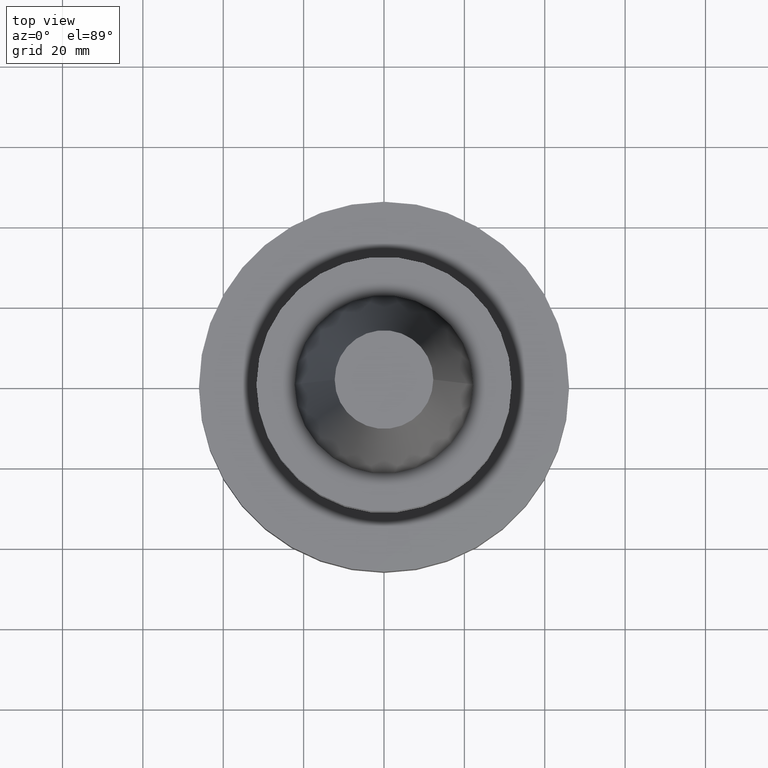
[diagram: clean part render]
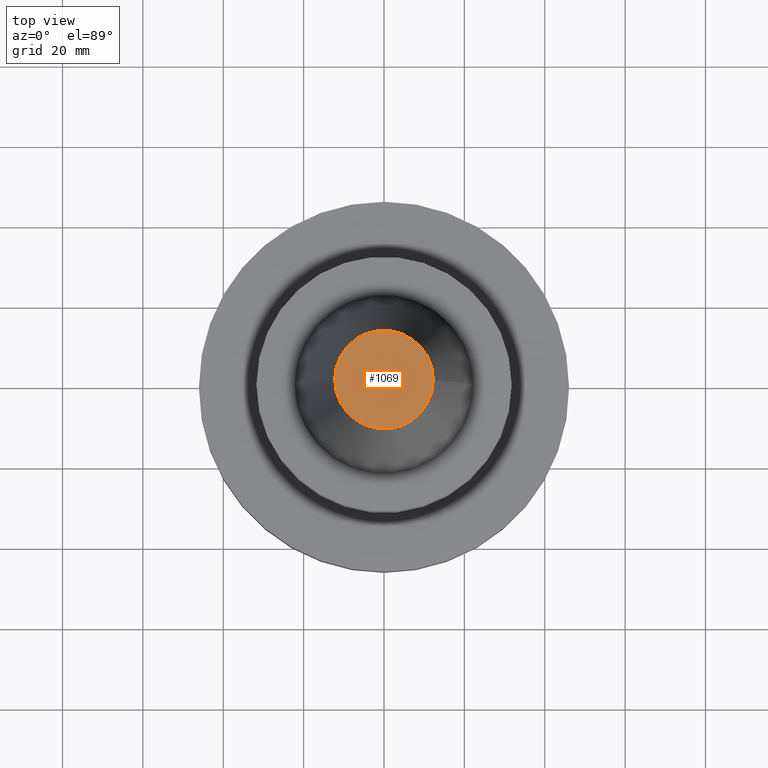
[diagram: same view with one face highlighted and labeled with its STEP entity id]
A machine part, top view. The second image highlights one B-rep face of the part: STEP entity #1069.
In plain terms, the highlighted planar face has unit normal (0, 0, -1).
Its self-contained STEP definition (entity closure, byte-faithful):
#14 = DIRECTION ( 'NONE',  ( 1.000000000000000000, 0.000000000000000000, 0.000000000000000000 ) ) ;
#132 = DIRECTION ( 'NONE',  ( 1.000000000000000000, 0.000000000000000000, 0.000000000000000000 ) ) ;
#167 = ORIENTED_EDGE ( 'NONE', *, *, #1015, .T. ) ;
#216 = AXIS2_PLACEMENT_3D ( 'NONE', #710, #728, #723 ) ;
#246 = EDGE_LOOP ( 'NONE', ( #326, #167 ) ) ;
#250 = AXIS2_PLACEMENT_3D ( 'NONE', #697, #1018, #14 ) ;
#256 = EDGE_CURVE ( 'NONE', #1089, #730, #360, .T. ) ;
#326 = ORIENTED_EDGE ( 'NONE', *, *, #256, .T. ) ;
#360 = CIRCLE ( 'NONE', #767, 12.27178102086201150 ) ;
#379 = DIRECTION ( 'NONE',  ( -0.000000000000000000, -0.000000000000000000, 1.000000000000000000 ) ) ;
#388 = CARTESIAN_POINT ( 'NONE',  ( -12.27178102086201150, 0.000000000000000000, 68.25000000000000000 ) ) ;
#565 = CARTESIAN_POINT ( 'NONE',  ( 0.000000000000000000, 0.000000000000000000, 68.25000000000000000 ) ) ;
#697 = CARTESIAN_POINT ( 'NONE',  ( 0.000000000000000000, 0.000000000000000000, 68.25000000000000000 ) ) ;
#710 = CARTESIAN_POINT ( 'NONE',  ( 0.000000000000000000, 12.27178102086201150, 68.25000000000000000 ) ) ;
#723 = DIRECTION ( 'NONE',  ( -1.000000000000000000, 0.000000000000000000, -0.000000000000000000 ) ) ;
#728 = DIRECTION ( 'NONE',  ( 0.000000000000000000, 0.000000000000000000, -1.000000000000000000 ) ) ;
#730 = VERTEX_POINT ( 'NONE', #1067 ) ;
#767 = AXIS2_PLACEMENT_3D ( 'NONE', #565, #379, #132 ) ;
#797 = FACE_OUTER_BOUND ( 'NONE', #246, .T. ) ;
#946 = PLANE ( 'NONE',  #216 ) ;
#1015 = EDGE_CURVE ( 'NONE', #730, #1089, #1078, .T. ) ;
#1018 = DIRECTION ( 'NONE',  ( -0.000000000000000000, -0.000000000000000000, 1.000000000000000000 ) ) ;
#1067 = CARTESIAN_POINT ( 'NONE',  ( 12.27178102086201150, 2.112318622904291439E-15, 68.25000000000000000 ) ) ;
#1069 = ADVANCED_FACE ( 'NONE', ( #797 ), #946, .F. ) ;
#1078 = CIRCLE ( 'NONE', #250, 12.27178102086201150 ) ;
#1089 = VERTEX_POINT ( 'NONE', #388 ) ;